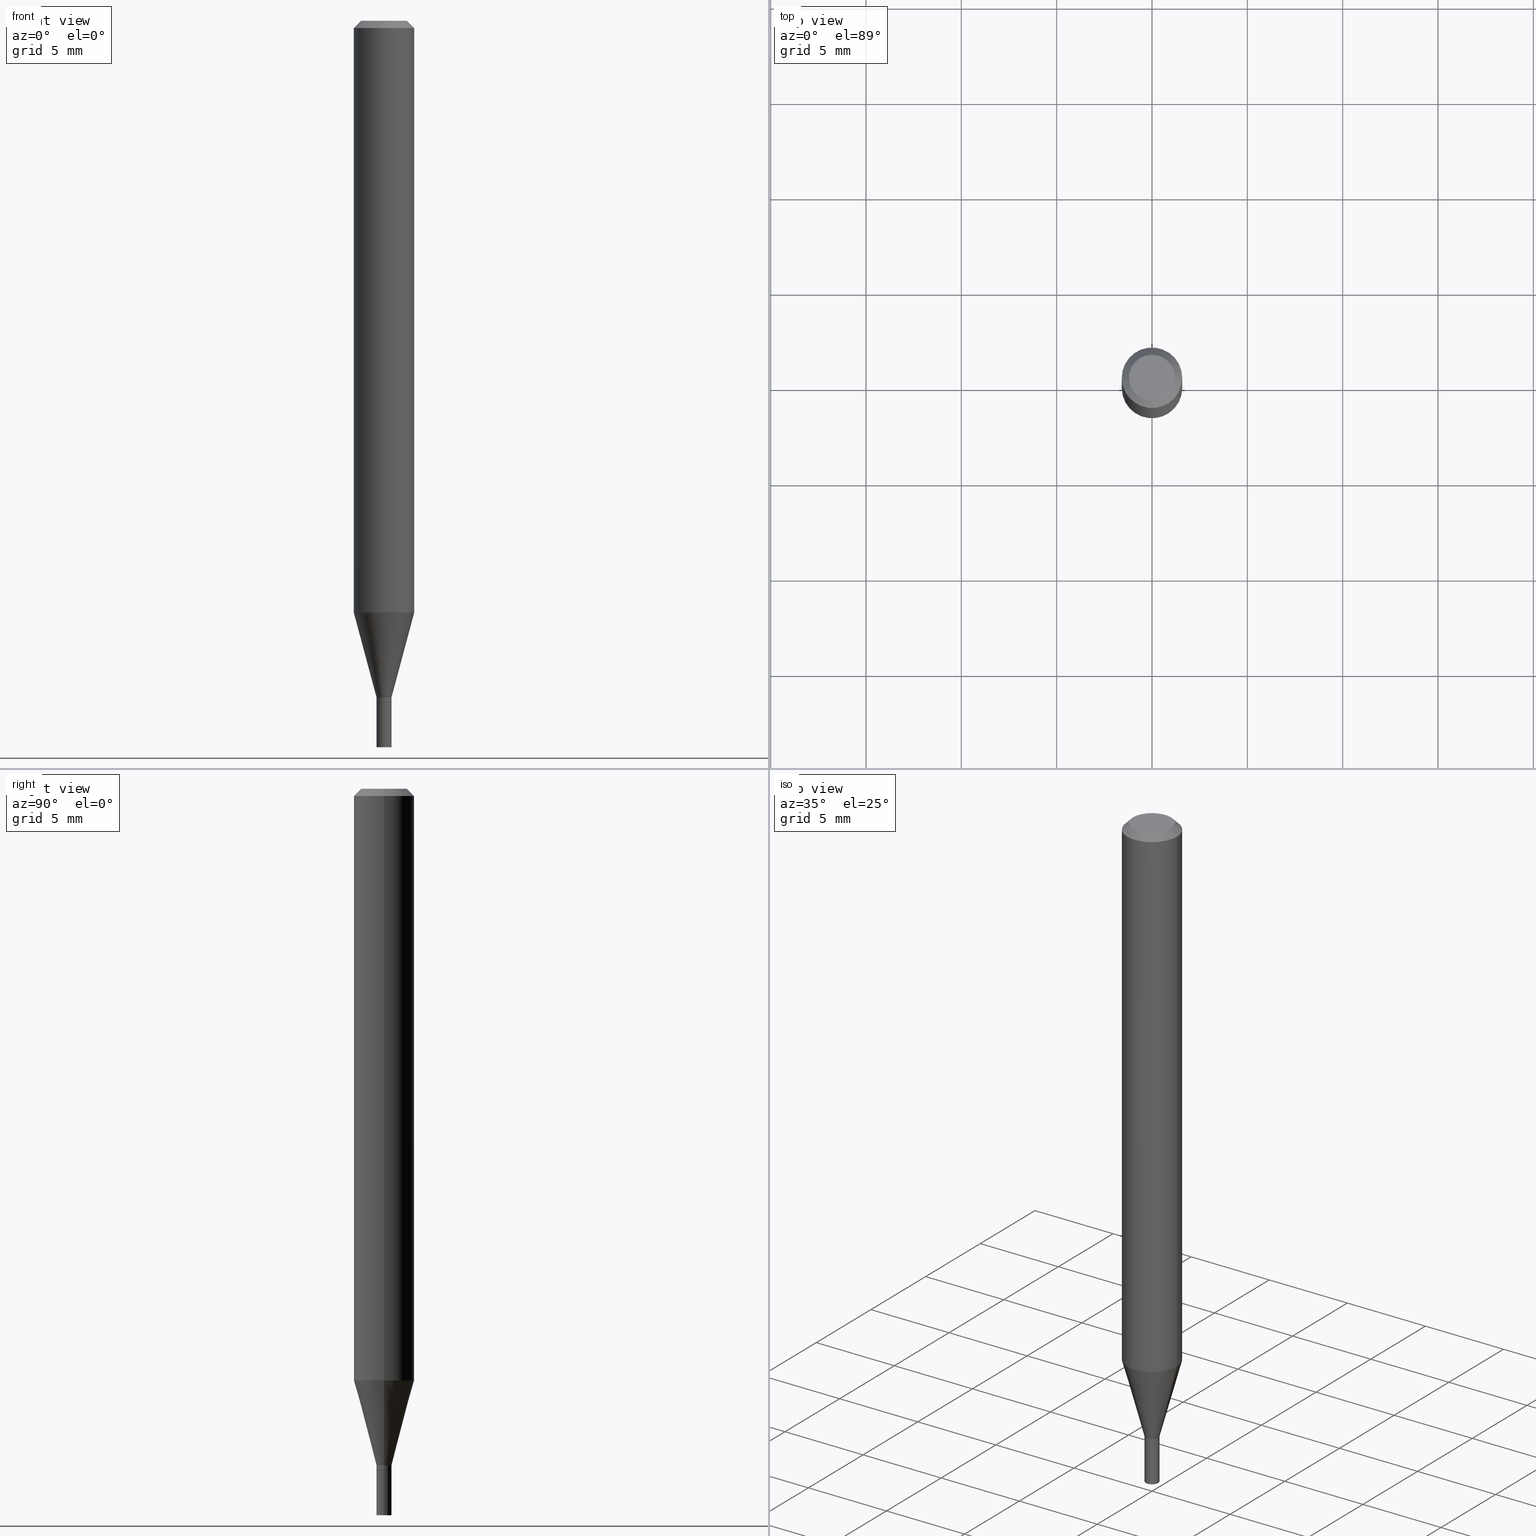
[diagram: canonical four-view strip — front | top / right | iso, engineering-drawing reading convention]
A machine part, canonical four-view strip (front | top / right | iso — engineering-drawing reading convention). The complete STEP part file that produces these views, byte-faithful:
ISO-10303-21;
HEADER;
FILE_DESCRIPTION (( 'STEP AP203' ),
    '1' );
FILE_NAME ('00837.STEP',
    '2024-03-19T22:39:17',
    ( '' ),
    ( '' ),
    'SwSTEP 2.0',
    'SolidWorks 2023',
    '' );
FILE_SCHEMA (( 'CONFIG_CONTROL_DESIGN' ));
ENDSEC;

DATA;
#1 = DIRECTION ( 'NONE',  ( 1.000000000000000000, -6.982962677686267499E-15, 4.852736867747366768E-29 ) ) ;
#2 = APPROVAL_DATE_TIME ( #331, #119 ) ;
#3 = EDGE_CURVE ( 'NONE', #184, #27, #83, .T. ) ;
#4 = FACE_OUTER_BOUND ( 'NONE', #327, .T. ) ;
#5 = VECTOR ( 'NONE', #39, 39.37007874015748143 ) ;
#6 = LOCAL_TIME ( 18, 39, 17.00000000000000000, #149 ) ;
#7 = APPROVAL_ROLE ( '' ) ;
#8 = DIMENSIONAL_EXPONENTS ( 1.000000000000000000, 0.000000000000000000, 0.000000000000000000, 0.000000000000000000, 0.000000000000000000, 0.000000000000000000, 0.000000000000000000 ) ;
#9 = LINE ( 'NONE', #378, #49 ) ;
#10 = PRODUCT_RELATED_PRODUCT_CATEGORY ( 'detail', '', ( #68 ) ) ;
#11 = VERTEX_POINT ( 'NONE', #336 ) ;
#12 = LINE ( 'NONE', #159, #289 ) ;
#13 = PERSON_AND_ORGANIZATION_ROLE ( 'design_supplier' ) ;
#14 = LINE ( 'NONE', #414, #203 ) ;
#15 = ORIENTED_EDGE ( 'NONE', *, *, #394, .T. ) ;
#16 = CARTESIAN_POINT ( 'NONE',  ( 0.04749999999999999362, -4.035134999187586019E-16, -4.684051019975741414E-16 ) ) ;
#17 = EDGE_CURVE ( 'NONE', #100, #400, #9, .T. ) ;
#18 = DIRECTION ( 'NONE',  ( -2.445468806185136597E-29, 3.491481338843145583E-15, 1.000000000000000000 ) ) ;
#19 = AXIS2_PLACEMENT_3D ( 'NONE', #426, #416, #96 ) ;
#20 = ORGANIZATION ( 'UNSPECIFIED', 'UNSPECIFIED', '' ) ;
#21 = APPROVAL_ROLE ( '' ) ;
#22 = EDGE_LOOP ( 'NONE', ( #314, #104, #66, #317 ) ) ;
#23 = CARTESIAN_POINT ( 'NONE',  ( 3.416319922240636557E-29, -4.877599430363875031E-15, -1.397000000000000242 ) ) ;
#24 = ORIENTED_EDGE ( 'NONE', *, *, #352, .F. ) ;
#25 = APPROVAL_DATE_TIME ( #312, #196 ) ;
#26 = FACE_OUTER_BOUND ( 'NONE', #461, .T. ) ;
#27 = VERTEX_POINT ( 'NONE', #125 ) ;
#28 = EDGE_CURVE ( 'NONE', #463, #419, #406, .T. ) ;
#29 = ORIENTED_EDGE ( 'NONE', *, *, #28, .F. ) ;
#30 = DIRECTION ( 'NONE',  ( -2.445468806185136597E-29, 3.491481338843145583E-15, 1.000000000000000000 ) ) ;
#31 = ORIENTED_EDGE ( 'NONE', *, *, #335, .T. ) ;
#32 = LINE ( 'NONE', #437, #421 ) ;
#33 = CARTESIAN_POINT ( 'NONE',  ( -0.06250000000000000000, 4.440892098500626162E-16, -3.074334431409316114E-30 ) ) ;
#34 = CARTESIAN_POINT ( 'NONE',  ( 2.987369072089272424E-29, -4.265171300102537329E-15, -1.221593612044262978 ) ) ;
#35 = EDGE_CURVE ( 'NONE', #463, #184, #194, .T. ) ;
#36 = CYLINDRICAL_SURFACE ( 'NONE', #185, 0.01549999999999999989 ) ;
#37 = DIRECTION ( 'NONE',  ( -2.445468806185136877E-29, 3.491481338843145188E-15, 1.000000000000000000 ) ) ;
#38 =( NAMED_UNIT ( * ) PLANE_ANGLE_UNIT ( ) SI_UNIT ( $, .RADIAN. ) );
#39 = DIRECTION ( 'NONE',  ( -2.445468806185136877E-29, 3.491481338843145188E-15, 1.000000000000000000 ) ) ;
#40 = AXIS2_PLACEMENT_3D ( 'NONE', #381, #58, #199 ) ;
#41 = DIRECTION ( 'NONE',  ( -2.445468806185136597E-29, 3.491481338843145583E-15, 1.000000000000000000 ) ) ;
#42 = APPLICATION_PROTOCOL_DEFINITION ( 'international standard', 'config_control_design', 1994, #221 ) ;
#43 = EDGE_CURVE ( 'NONE', #52, #249, #263, .T. ) ;
#44 = DIRECTION ( 'NONE',  ( 1.000000000000000000, -6.982962677686273810E-15, 0.000000000000000000 ) ) ;
#45 = DIRECTION ( 'NONE',  ( -0.7071067811865642261, 7.493145998870414114E-15, 0.7071067811865309194 ) ) ;
#46 = PERSON_AND_ORGANIZATION ( #142, #20 ) ;
#47 = PERSON_AND_ORGANIZATION ( #142, #20 ) ;
#48 = AXIS2_PLACEMENT_3D ( 'NONE', #111, #326, #325 ) ;
#49 = VECTOR ( 'NONE', #270, 39.37007874015748143 ) ;
#50 = DIRECTION ( 'NONE',  ( 1.000000000000000000, -6.982962677686270655E-15, 0.000000000000000000 ) ) ;
#51 = EDGE_CURVE ( 'NONE', #252, #282, #12, .T. ) ;
#52 = VERTEX_POINT ( 'NONE', #16 ) ;
#53 = DIRECTION ( 'NONE',  ( -2.445468806185136597E-29, 3.491481338843145583E-15, 1.000000000000000000 ) ) ;
#54 = SHAPE_DEFINITION_REPRESENTATION ( #253, #357 ) ;
#55 = CARTESIAN_POINT ( 'NONE',  ( 0.01549999999999992183, -4.985835351868011408E-15, -1.397000000000000242 ) ) ;
#56 = CIRCLE ( 'NONE', #269, 0.04749999999999999362 ) ;
#57 = EDGE_CURVE ( 'NONE', #419, #27, #14, .T. ) ;
#58 = DIRECTION ( 'NONE',  ( -2.445468806185136597E-29, 3.491481338843145583E-15, 1.000000000000000000 ) ) ;
#59 = CARTESIAN_POINT ( 'NONE',  ( 0.01549999999999992183, -5.019004424587020764E-15, -1.406500000000000083 ) ) ;
#60 = COORDINATED_UNIVERSAL_TIME_OFFSET ( 5, 0, .BEHIND. ) ;
#61 = DIRECTION ( 'NONE',  ( -2.445468806185136597E-29, 3.491481338843145583E-15, 1.000000000000000000 ) ) ;
#62 = DIRECTION ( 'NONE',  ( 1.000000000000000000, -6.982962677686238312E-15, 0.000000000000000000 ) ) ;
#63 = VECTOR ( 'NONE', #283, 39.37007874015748143 ) ;
#64 = AXIS2_PLACEMENT_3D ( 'NONE', #369, #330, #151 ) ;
#65 = ORIENTED_EDGE ( 'NONE', *, *, #17, .T. ) ;
#66 = ORIENTED_EDGE ( 'NONE', *, *, #428, .F. ) ;
#67 = DIRECTION ( 'NONE',  ( 2.445468806185136597E-29, -3.491481338843145583E-15, -1.000000000000000000 ) ) ;
#68 = PRODUCT ( '00837', '00837', '', ( #191 ) ) ;
#69 = ADVANCED_FACE ( 'NONE', ( #232 ), #226, .T. ) ;
#70 = CARTESIAN_POINT ( 'NONE',  ( 3.668203209277705088E-31, -5.237222008264718399E-17, -0.01499999999999999944 ) ) ;
#71 = EDGE_LOOP ( 'NONE', ( #276, #425, #212, #395 ) ) ;
#72 = CARTESIAN_POINT ( 'NONE',  ( 3.440774610302487541E-29, -4.912514243752305891E-15, -1.407000000000000028 ) ) ;
#73 = CIRCLE ( 'NONE', #318, 0.04749999999999999362 ) ;
#74 = VERTEX_POINT ( 'NONE', #163 ) ;
#75 = CC_DESIGN_PERSON_AND_ORGANIZATION_ASSIGNMENT ( #46, #112, ( #68 ) ) ;
#76 = FACE_OUTER_BOUND ( 'NONE', #181, .T. ) ;
#77 = DIRECTION ( 'NONE',  ( -2.445468806185136597E-29, 3.491481338843145583E-15, 1.000000000000000000 ) ) ;
#78 = LINE ( 'NONE', #33, #5 ) ;
#79 = FACE_OUTER_BOUND ( 'NONE', #284, .T. ) ;
#80 = CARTESIAN_POINT ( 'NONE',  ( 0.000000000000000000, 0.000000000000000000, 0.000000000000000000 ) ) ;
#81 = AXIS2_PLACEMENT_3D ( 'NONE', #139, #98, #241 ) ;
#82 = AXIS2_PLACEMENT_3D ( 'NONE', #294, #189, #333 ) ;
#83 = CIRCLE ( 'NONE', #340, 0.06250000000000000000 ) ;
#84 = DIRECTION ( 'NONE',  ( -2.445468806185136597E-29, 3.491481338843145583E-15, 1.000000000000000000 ) ) ;
#85 = APPLICATION_PROTOCOL_DEFINITION ( 'international standard', 'config_control_design', 1994, #138 ) ;
#86 = CYLINDRICAL_SURFACE ( 'NONE', #299, 0.06250000000000000000 ) ;
#87 = EDGE_CURVE ( 'NONE', #11, #398, #172, .T. ) ;
#88 = AXIS2_PLACEMENT_3D ( 'NONE', #288, #255, #402 ) ;
#89 = AXIS2_PLACEMENT_3D ( 'NONE', #420, #18, #346 ) ;
#90 = PRODUCT_DEFINITION_FORMATION_WITH_SPECIFIED_SOURCE ( 'ANY', '', #68, .NOT_KNOWN. ) ;
#91 = DATE_AND_TIME ( #231, #309 ) ;
#92 = EDGE_CURVE ( 'NONE', #398, #400, #334, .T. ) ;
#93 = DIRECTION ( 'NONE',  ( -0.2588190451025212391, 5.211531920934549464E-15, 0.9659258262890679791 ) ) ;
#94 = CARTESIAN_POINT ( 'NONE',  ( 3.668203209277705088E-31, -5.237222008264718399E-17, -0.01499999999999999944 ) ) ;
#95 = VERTEX_POINT ( 'NONE', #451 ) ;
#96 = DIRECTION ( 'NONE',  ( 1.000000000000000000, -6.982962677686273810E-15, 0.000000000000000000 ) ) ;
#97 = ORIENTED_EDGE ( 'NONE', *, *, #428, .T. ) ;
#98 = DIRECTION ( 'NONE',  ( -2.438088387897960049E-29, 3.491481338843145188E-15, 1.000000000000000000 ) ) ;
#99 = CC_DESIGN_DATE_AND_TIME_ASSIGNMENT ( #200, #341, ( #242 ) ) ;
#100 = VERTEX_POINT ( 'NONE', #204 ) ;
#101 = CYLINDRICAL_SURFACE ( 'NONE', #328, 0.01549999999999992183 ) ;
#102 = ORIENTED_EDGE ( 'NONE', *, *, #248, .T. ) ;
#103 = DIRECTION ( 'NONE',  ( -1.000000000000000000, 6.982962677686265922E-15, -4.876176775795935793E-29 ) ) ;
#104 = ORIENTED_EDGE ( 'NONE', *, *, #342, .T. ) ;
#105 = ADVANCED_FACE ( 'NONE', ( #165 ), #130, .F. ) ;
#106 = ORIENTED_EDGE ( 'NONE', *, *, #361, .T. ) ;
#107 = DIRECTION ( 'NONE',  ( -2.445468806185136597E-29, 3.491481338843145583E-15, 1.000000000000000000 ) ) ;
#108 = CIRCLE ( 'NONE', #374, 0.01499999999999999944 ) ;
#109 = ORIENTED_EDGE ( 'NONE', *, *, #92, .F. ) ;
#110 = DIRECTION ( 'NONE',  ( -2.445468806185136597E-29, 3.491481338843145583E-15, 1.000000000000000000 ) ) ;
#111 = CARTESIAN_POINT ( 'NONE',  ( 0.000000000000000000, 0.000000000000000000, 0.000000000000000000 ) ) ;
#112 = PERSON_AND_ORGANIZATION_ROLE ( 'design_owner' ) ;
#113 = UNCERTAINTY_MEASURE_WITH_UNIT (LENGTH_MEASURE( 1.000000000000000082E-05 ), #264, 'distance_accuracy_value', 'NONE');
#114 = EDGE_CURVE ( 'NONE', #140, #419, #272, .T. ) ;
#115 = CARTESIAN_POINT ( 'NONE',  ( 1.145470065593040868E-44, -1.635427672643458845E-30, -4.684051019975766066E-16 ) ) ;
#116 = CYLINDRICAL_SURFACE ( 'NONE', #48, 0.06250000000000000000 ) ;
#117 = PERSON_AND_ORGANIZATION ( #142, #20 ) ;
#118 = CARTESIAN_POINT ( 'NONE',  ( 0.000000000000000000, 0.000000000000000000, 0.000000000000000000 ) ) ;
#119 = APPROVAL ( #261, 'UNSPECIFIED' ) ;
#120 = CIRCLE ( 'NONE', #218, 0.01549999999999992183 ) ;
#121 = APPROVAL_PERSON_ORGANIZATION ( #308, #450, #236 ) ;
#122 = LENGTH_MEASURE_WITH_UNIT ( LENGTH_MEASURE( 0.02539999999999999897 ), #228 );
#123 = ADVANCED_FACE ( 'NONE', ( #418 ), #302, .T. ) ;
#124 = COORDINATED_UNIVERSAL_TIME_OFFSET ( 5, 0, .BEHIND. ) ;
#125 = CARTESIAN_POINT ( 'NONE',  ( -0.06250000000000000000, -3.821082090252475502E-15, -1.221593612044262978 ) ) ;
#126 = AXIS2_PLACEMENT_3D ( 'NONE', #94, #135, #278 ) ;
#127 = CC_DESIGN_APPROVAL ( #196, ( #90 ) ) ;
#128 = EDGE_CURVE ( 'NONE', #419, #463, #367, .T. ) ;
#129 = ORIENTED_EDGE ( 'NONE', *, *, #394, .F. ) ;
#130 = PLANE ( 'NONE',  #176 ) ;
#131 = ADVANCED_FACE ( 'NONE', ( #244 ), #348, .T. ) ;
#132 = ORIENTED_EDGE ( 'NONE', *, *, #87, .T. ) ;
#133 = DIRECTION ( 'NONE',  ( 1.000000000000000000, -6.982962677686266711E-15, 0.000000000000000000 ) ) ;
#134 = EDGE_LOOP ( 'NONE', ( #170, #158, #273, #459 ) ) ;
#135 = DIRECTION ( 'NONE',  ( 2.445468806185136597E-29, -3.491481338843145583E-15, -1.000000000000000000 ) ) ;
#136 = CONICAL_SURFACE ( 'NONE', #257, 0.01499999999999999944, 0.7853981633974718157 ) ;
#137 = EDGE_LOOP ( 'NONE', ( #429, #456 ) ) ;
#138 = APPLICATION_CONTEXT ( 'configuration controlled 3d designs of mechanical parts and assemblies' ) ;
#139 = CARTESIAN_POINT ( 'NONE',  ( 3.440774610302487541E-29, -4.912514243752305891E-15, -1.407000000000000028 ) ) ;
#140 = VERTEX_POINT ( 'NONE', #351 ) ;
#141 = CARTESIAN_POINT ( 'NONE',  ( -0.01549999999999999989, 1.101341240428155280E-16, -7.624349389895103058E-31 ) ) ;
#142 = PERSON ( 'UNSPECIFIED', 'UNSPECIFIED', 'UNSPECIFIED', ('UNSPECIFIED'), ('UNSPECIFIED'), ('UNSPECIFIED') ) ;
#143 = DIRECTION ( 'NONE',  ( 1.000000000000000000, -6.982962677686266711E-15, 4.876176775795935232E-29 ) ) ;
#144 = ORIENTED_EDGE ( 'NONE', *, *, #332, .T. ) ;
#145 = VECTOR ( 'NONE', #454, 39.37007874015748143 ) ;
#146 = DIRECTION ( 'NONE',  ( 1.000000000000000000, -6.982962677686267499E-15, 4.876176775795935793E-29 ) ) ;
#147 = AXIS2_PLACEMENT_3D ( 'NONE', #438, #411, #266 ) ;
#148 = FACE_OUTER_BOUND ( 'NONE', #193, .T. ) ;
#149 = COORDINATED_UNIVERSAL_TIME_OFFSET ( 5, 0, .BEHIND. ) ;
#150 = EDGE_CURVE ( 'NONE', #400, #398, #296, .T. ) ;
#151 = DIRECTION ( 'NONE',  ( -1.000000000000000000, 6.982962677686265922E-15, -4.876176775795935793E-29 ) ) ;
#152 = DIRECTION ( 'NONE',  ( 1.000000000000000000, 0.000000000000000000, 0.000000000000000000 ) ) ;
#153 = CYLINDRICAL_SURFACE ( 'NONE', #210, 0.01549999999999999989 ) ;
#154 = CIRCLE ( 'NONE', #82, 0.01549999999999992183 ) ;
#155 = ADVANCED_FACE ( 'NONE', ( #322 ), #410, .T. ) ;
#156 = CARTESIAN_POINT ( 'NONE',  ( 3.416319922240636557E-29, -4.877599430363875031E-15, -1.397000000000000242 ) ) ;
#157 = AXIS2_PLACEMENT_3D ( 'NONE', #385, #178, #62 ) ;
#158 = ORIENTED_EDGE ( 'NONE', *, *, #57, .T. ) ;
#159 = CARTESIAN_POINT ( 'NONE',  ( 0.01499999999999999944, -5.017258683917599261E-15, -1.407000000000000028 ) ) ;
#160 = FACE_OUTER_BOUND ( 'NONE', #22, .T. ) ;
#161 = CALENDAR_DATE ( 2024, 19, 3 ) ;
#162 = PERSON_AND_ORGANIZATION_ROLE ( 'creator' ) ;
#163 = CARTESIAN_POINT ( 'NONE',  ( -0.01499999999999999944, -4.803283606214179568E-15, -1.407000000000000028 ) ) ;
#164 = ORIENTED_EDGE ( 'NONE', *, *, #35, .T. ) ;
#165 = FACE_OUTER_BOUND ( 'NONE', #243, .T. ) ;
#166 = AXIS2_PLACEMENT_3D ( 'NONE', #458, #237, #392 ) ;
#167 = AXIS2_PLACEMENT_3D ( 'NONE', #80, #220, #152 ) ;
#168 = CC_DESIGN_PERSON_AND_ORGANIZATION_ASSIGNMENT ( #171, #13, ( #90 ) ) ;
#169 = DIRECTION ( 'NONE',  ( 2.438088387897960049E-29, -3.491481338843145188E-15, -1.000000000000000000 ) ) ;
#170 = ORIENTED_EDGE ( 'NONE', *, *, #28, .T. ) ;
#171 = PERSON_AND_ORGANIZATION ( #142, #20 ) ;
#172 = LINE ( 'NONE', #141, #307 ) ;
#173 = ORIENTED_EDGE ( 'NONE', *, *, #342, .F. ) ;
#174 = DIRECTION ( 'NONE',  ( 1.000000000000000000, -6.982962677686267499E-15, 4.876176775795935793E-29 ) ) ;
#175 = EDGE_CURVE ( 'NONE', #100, #11, #430, .T. ) ;
#176 = AXIS2_PLACEMENT_3D ( 'NONE', #311, #169, #103 ) ;
#177 =( GEOMETRIC_REPRESENTATION_CONTEXT ( 3 ) GLOBAL_UNCERTAINTY_ASSIGNED_CONTEXT ( ( #113 ) ) GLOBAL_UNIT_ASSIGNED_CONTEXT ( ( #264, #38, #323 ) ) REPRESENTATION_CONTEXT ( 'NONE', 'WORKASPACE' ) );
#178 = DIRECTION ( 'NONE',  ( -2.445468806185136597E-29, 3.491481338843145583E-15, 1.000000000000000000 ) ) ;
#179 = CARTESIAN_POINT ( 'NONE',  ( 3.668203209277704895E-29, -5.237222008264718177E-15, -1.500000000000000222 ) ) ;
#180 = CARTESIAN_POINT ( 'NONE',  ( -0.01499999999999999944, -4.805932833388290769E-15, -1.407000000000000028 ) ) ;
#181 = EDGE_LOOP ( 'NONE', ( #173, #391, #144, #205 ) ) ;
#182 = EDGE_CURVE ( 'NONE', #95, #249, #339, .T. ) ;
#183 = LINE ( 'NONE', #251, #404 ) ;
#184 = VERTEX_POINT ( 'NONE', #275 ) ;
#185 = AXIS2_PLACEMENT_3D ( 'NONE', #222, #211, #143 ) ;
#186 = LINE ( 'NONE', #180, #195 ) ;
#187 = CARTESIAN_POINT ( 'NONE',  ( -0.04749999999999999362, 3.578768372314202617E-16, -4.684051019975790718E-16 ) ) ;
#188 = CALENDAR_DATE ( 2024, 19, 3 ) ;
#189 = DIRECTION ( 'NONE',  ( -2.445468806185136597E-29, 3.491481338843145583E-15, 1.000000000000000000 ) ) ;
#190 = COORDINATED_UNIVERSAL_TIME_OFFSET ( 5, 0, .BEHIND. ) ;
#191 = MECHANICAL_CONTEXT ( 'NONE', #138, 'mechanical' ) ;
#192 = CIRCLE ( 'NONE', #347, 0.06250000000000000000 ) ;
#193 = EDGE_LOOP ( 'NONE', ( #310, #423, #29, #377 ) ) ;
#194 = LINE ( 'NONE', #55, #457 ) ;
#195 = VECTOR ( 'NONE', #45, 39.37007874015748143 ) ;
#196 = APPROVAL ( #434, 'UNSPECIFIED' ) ;
#197 = ORIENTED_EDGE ( 'NONE', *, *, #417, .F. ) ;
#198 = AXIS2_PLACEMENT_3D ( 'NONE', #156, #53, #301 ) ;
#199 = DIRECTION ( 'NONE',  ( 1.000000000000000000, -6.982962677686268288E-15, 0.000000000000000000 ) ) ;
#200 = DATE_AND_TIME ( #161, #227 ) ;
#201 = DIRECTION ( 'NONE',  ( -2.445468806185136877E-29, 3.491481338843145188E-15, 1.000000000000000000 ) ) ;
#202 = ADVANCED_FACE ( 'NONE', ( #235 ), #356, .F. ) ;
#203 = VECTOR ( 'NONE', #93, 39.37007874015748854 ) ;
#204 = CARTESIAN_POINT ( 'NONE',  ( 0.01549999999999999989, -5.345457929768855342E-15, -1.500000000000000222 ) ) ;
#205 = ORIENTED_EDGE ( 'NONE', *, *, #182, .F. ) ;
#206 = DIRECTION ( 'NONE',  ( -1.000000000000000000, 6.982962677686266711E-15, 0.000000000000000000 ) ) ;
#207 = DIRECTION ( 'NONE',  ( 1.000000000000000000, -6.982962677686273810E-15, 0.000000000000000000 ) ) ;
#208 = EDGE_LOOP ( 'NONE', ( #24, #363, #97, #384 ) ) ;
#209 = DIRECTION ( 'NONE',  ( -2.445468806185136597E-29, 3.491481338843145583E-15, 1.000000000000000000 ) ) ;
#210 = AXIS2_PLACEMENT_3D ( 'NONE', #436, #285, #219 ) ;
#211 = DIRECTION ( 'NONE',  ( -2.445468806185136597E-29, 3.491481338843145583E-15, 1.000000000000000000 ) ) ;
#212 = ORIENTED_EDGE ( 'NONE', *, *, #229, .T. ) ;
#213 = ADVANCED_FACE ( 'NONE', ( #246 ), #379, .T. ) ;
#214 = DIRECTION ( 'NONE',  ( 1.000000000000000000, -6.982962677686267499E-15, 4.852736867747366768E-29 ) ) ;
#215 = ORIENTED_EDGE ( 'NONE', *, *, #57, .F. ) ;
#216 = ADVANCED_FACE ( 'NONE', ( #26 ), #101, .T. ) ;
#217 = DIRECTION ( 'NONE',  ( 1.000000000000000000, -6.982962677686268288E-15, 0.000000000000000000 ) ) ;
#218 = AXIS2_PLACEMENT_3D ( 'NONE', #435, #84, #44 ) ;
#219 = DIRECTION ( 'NONE',  ( 1.000000000000000000, -6.982962677686266711E-15, 4.876176775795935232E-29 ) ) ;
#220 = DIRECTION ( 'NONE',  ( 0.000000000000000000, 0.000000000000000000, 1.000000000000000000 ) ) ;
#221 = APPLICATION_CONTEXT ( 'configuration controlled 3d designs of mechanical parts and assemblies' ) ;
#222 = CARTESIAN_POINT ( 'NONE',  ( 0.000000000000000000, 0.000000000000000000, 0.000000000000000000 ) ) ;
#223 = PERSON_AND_ORGANIZATION_ROLE ( 'creator' ) ;
#224 = DIRECTION ( 'NONE',  ( 1.000000000000000000, -6.982962677686266711E-15, 4.876176775795935793E-29 ) ) ;
#225 = CLOSED_SHELL ( 'NONE', ( #300, #386, #315, #409 ) ) ;
#226 = CONICAL_SURFACE ( 'NONE', #40, 0.01499999999999999944, 0.7853981633974718157 ) ;
#227 = LOCAL_TIME ( 18, 39, 17.00000000000000000, #380 ) ;
#228 =( LENGTH_UNIT ( ) NAMED_UNIT ( * ) SI_UNIT ( $, .METRE. ) );
#229 = EDGE_CURVE ( 'NONE', #344, #95, #382, .T. ) ;
#230 = ORIENTED_EDGE ( 'NONE', *, *, #280, .T. ) ;
#231 = CALENDAR_DATE ( 2024, 19, 3 ) ;
#232 = FACE_OUTER_BOUND ( 'NONE', #247, .T. ) ;
#233 = PERSON_AND_ORGANIZATION ( #142, #20 ) ;
#234 = ADVANCED_FACE ( 'NONE', ( #396 ), #136, .T. ) ;
#235 = FACE_OUTER_BOUND ( 'NONE', #353, .T. ) ;
#236 = APPROVAL_ROLE ( '' ) ;
#237 = DIRECTION ( 'NONE',  ( -2.445468806185136597E-29, 3.491481338843145583E-15, 1.000000000000000000 ) ) ;
#238 = ORIENTED_EDGE ( 'NONE', *, *, #17, .F. ) ;
#239 = AXIS2_PLACEMENT_3D ( 'NONE', #179, #371, #383 ) ;
#240 = ORIENTED_EDGE ( 'NONE', *, *, #293, .F. ) ;
#241 = DIRECTION ( 'NONE',  ( 1.000000000000000000, -6.982962677686265922E-15, 4.876176775795935793E-29 ) ) ;
#242 = SECURITY_CLASSIFICATION ( '', '', #274 ) ;
#243 = EDGE_LOOP ( 'NONE', ( #106, #286 ) ) ;
#244 = FACE_OUTER_BOUND ( 'NONE', #365, .T. ) ;
#245 = ORIENTED_EDGE ( 'NONE', *, *, #254, .T. ) ;
#246 = FACE_OUTER_BOUND ( 'NONE', #71, .T. ) ;
#247 = EDGE_LOOP ( 'NONE', ( #15, #31, #393, #376 ) ) ;
#248 = EDGE_CURVE ( 'NONE', #282, #463, #32, .T. ) ;
#249 = VERTEX_POINT ( 'NONE', #440 ) ;
#250 = AXIS2_PLACEMENT_3D ( 'NONE', #390, #67, #206 ) ;
#251 = CARTESIAN_POINT ( 'NONE',  ( 0.06250000000000000000, -4.364351673553916694E-16, 3.047610484872459871E-30 ) ) ;
#252 = VERTEX_POINT ( 'NONE', #405 ) ;
#253 = PRODUCT_DEFINITION_SHAPE ( 'NONE', 'NONE',  #267 ) ;
#254 = EDGE_CURVE ( 'NONE', #74, #252, #415, .T. ) ;
#255 = DIRECTION ( 'NONE',  ( -2.445468806185136597E-29, 3.491481338843145583E-15, 1.000000000000000000 ) ) ;
#256 = CARTESIAN_POINT ( 'NONE',  ( 3.440774610302487541E-29, -4.912514243752305891E-15, -1.407000000000000028 ) ) ;
#257 = AXIS2_PLACEMENT_3D ( 'NONE', #72, #209, #360 ) ;
#258 = DIRECTION ( 'NONE',  ( -2.438088387897960049E-29, 3.491481338843145188E-15, 1.000000000000000000 ) ) ;
#259 = EDGE_CURVE ( 'NONE', #282, #140, #120, .T. ) ;
#260 = DIRECTION ( 'NONE',  ( 1.000000000000000000, -6.982962677686270655E-15, 0.000000000000000000 ) ) ;
#261 = APPROVAL_STATUS ( 'not_yet_approved' ) ;
#262 = AXIS2_PLACEMENT_3D ( 'NONE', #23, #61, #207 ) ;
#263 = LINE ( 'NONE', #413, #320 ) ;
#264 =( CONVERSION_BASED_UNIT ( 'INCH', #122 ) LENGTH_UNIT ( ) NAMED_UNIT ( #8 ) );
#265 = PERSON_AND_ORGANIZATION_ROLE ( 'classification_officer' ) ;
#266 = DIRECTION ( 'NONE',  ( 1.000000000000000000, -6.982962677686266711E-15, 0.000000000000000000 ) ) ;
#267 = PRODUCT_DEFINITION ( 'UNKNOWN', '', #90, #375 ) ;
#268 = MANIFOLD_SOLID_BREP ( 'Body-Move/Copy2[1]', #225 ) ;
#269 = AXIS2_PLACEMENT_3D ( 'NONE', #115, #107, #1 ) ;
#270 = DIRECTION ( 'NONE',  ( -2.445468806185136877E-29, 3.491481338843145188E-15, 1.000000000000000000 ) ) ;
#271 = CALENDAR_DATE ( 2024, 19, 3 ) ;
#272 = LINE ( 'NONE', #460, #145 ) ;
#273 = ORIENTED_EDGE ( 'NONE', *, *, #3, .F. ) ;
#274 = SECURITY_CLASSIFICATION_LEVEL ( 'unclassified' ) ;
#275 = CARTESIAN_POINT ( 'NONE',  ( 0.06250000000000000000, -4.701606467457928999E-15, -1.221593612044262978 ) ) ;
#276 = ORIENTED_EDGE ( 'NONE', *, *, #43, .F. ) ;
#277 = AXIS2_PLACEMENT_3D ( 'NONE', #408, #110, #146 ) ;
#278 = DIRECTION ( 'NONE',  ( -1.000000000000000000, 6.982962677686266711E-15, 0.000000000000000000 ) ) ;
#279 = CLOSED_SHELL ( 'NONE', ( #324, #69, #155, #465, #123, #131, #373, #213, #105, #202, #234, #216 ) ) ;
#280 = EDGE_CURVE ( 'NONE', #11, #100, #387, .T. ) ;
#281 = ORIENTED_EDGE ( 'NONE', *, *, #175, .F. ) ;
#282 = VERTEX_POINT ( 'NONE', #59 ) ;
#283 = DIRECTION ( 'NONE',  ( -0.7071067811865585639, 2.468850131082372629E-15, -0.7071067811865364705 ) ) ;
#284 = EDGE_LOOP ( 'NONE', ( #444, #230, #65, #109 ) ) ;
#285 = DIRECTION ( 'NONE',  ( -2.445468806185136597E-29, 3.491481338843145583E-15, 1.000000000000000000 ) ) ;
#286 = ORIENTED_EDGE ( 'NONE', *, *, #352, .T. ) ;
#287 = CC_DESIGN_PERSON_AND_ORGANIZATION_ASSIGNMENT ( #233, #162, ( #90 ) ) ;
#288 = CARTESIAN_POINT ( 'NONE',  ( 3.440774610302487541E-29, -4.912514243752305891E-15, -1.407000000000000028 ) ) ;
#289 = VECTOR ( 'NONE', #304, 39.37007874015748143 ) ;
#290 = APPROVAL_PERSON_ORGANIZATION ( #47, #119, #7 ) ;
#291 = FACE_OUTER_BOUND ( 'NONE', #453, .T. ) ;
#292 = DATE_TIME_ROLE ( 'creation_date' ) ;
#293 = EDGE_CURVE ( 'NONE', #27, #184, #192, .T. ) ;
#294 = CARTESIAN_POINT ( 'NONE',  ( 3.439551875899394740E-29, -4.910768503082885176E-15, -1.406500000000000083 ) ) ;
#295 = PERSON_AND_ORGANIZATION ( #142, #20 ) ;
#296 = CIRCLE ( 'NONE', #157, 0.01549999999999999989 ) ;
#297 = CARTESIAN_POINT ( 'NONE',  ( -0.01549999999999992183, -4.294273698286767256E-15, -1.397000000000000242 ) ) ;
#298 = CALENDAR_DATE ( 2024, 19, 3 ) ;
#299 = AXIS2_PLACEMENT_3D ( 'NONE', #118, #443, #224 ) ;
#300 = ADVANCED_FACE ( 'NONE', ( #291 ), #36, .T. ) ;
#301 = DIRECTION ( 'NONE',  ( 1.000000000000000000, -6.982962677686273810E-15, 0.000000000000000000 ) ) ;
#302 = CONICAL_SURFACE ( 'NONE', #19, 0.01549999999999992183, 0.2617993877991499629 ) ;
#303 = ORIENTED_EDGE ( 'NONE', *, *, #114, .F. ) ;
#304 = DIRECTION ( 'NONE',  ( 0.7071067811865642261, -2.468850131082431399E-15, 0.7071067811865309194 ) ) ;
#305 = CC_DESIGN_PERSON_AND_ORGANIZATION_ASSIGNMENT ( #295, #223, ( #267 ) ) ;
#306 = CARTESIAN_POINT ( 'NONE',  ( 0.01549999999999992183, -4.985835351868011408E-15, -1.397000000000000242 ) ) ;
#307 = VECTOR ( 'NONE', #201, 39.37007874015748143 ) ;
#308 = PERSON_AND_ORGANIZATION ( #142, #20 ) ;
#309 = LOCAL_TIME ( 18, 39, 17.00000000000000000, #60 ) ;
#310 = ORIENTED_EDGE ( 'NONE', *, *, #259, .T. ) ;
#311 = CARTESIAN_POINT ( 'NONE',  ( 3.316907271900976096E-16, 0.04749999999999999362, -4.000479145938377490E-16 ) ) ;
#312 = DATE_AND_TIME ( #271, #422 ) ;
#313 = DIRECTION ( 'NONE',  ( -2.445468806185136597E-29, 3.491481338843145583E-15, 1.000000000000000000 ) ) ;
#314 = ORIENTED_EDGE ( 'NONE', *, *, #3, .T. ) ;
#315 = ADVANCED_FACE ( 'NONE', ( #79 ), #153, .T. ) ;
#316 = CARTESIAN_POINT ( 'NONE',  ( 0.000000000000000000, 0.000000000000000000, 0.000000000000000000 ) ) ;
#317 = ORIENTED_EDGE ( 'NONE', *, *, #332, .F. ) ;
#318 = AXIS2_PLACEMENT_3D ( 'NONE', #433, #399, #214 ) ;
#319 = CARTESIAN_POINT ( 'NONE',  ( -0.06250000000000000000, 3.840629472727444916E-16, -0.01499999999999999944 ) ) ;
#320 = VECTOR ( 'NONE', #338, 39.37007874015748143 ) ;
#321 = ORIENTED_EDGE ( 'NONE', *, *, #254, .F. ) ;
#322 = FACE_OUTER_BOUND ( 'NONE', #208, .T. ) ;
#323 =( NAMED_UNIT ( * ) SI_UNIT ( $, .STERADIAN. ) SOLID_ANGLE_UNIT ( ) );
#324 = ADVANCED_FACE ( 'NONE', ( #148 ), #401, .T. ) ;
#325 = DIRECTION ( 'NONE',  ( 1.000000000000000000, -6.982962677686266711E-15, 4.876176775795935793E-29 ) ) ;
#326 = DIRECTION ( 'NONE',  ( -2.445468806185136597E-29, 3.491481338843145583E-15, 1.000000000000000000 ) ) ;
#327 = EDGE_LOOP ( 'NONE', ( #281, #389 ) ) ;
#328 = AXIS2_PLACEMENT_3D ( 'NONE', #316, #30, #174 ) ;
#329 = FACE_OUTER_BOUND ( 'NONE', #137, .T. ) ;
#330 = DIRECTION ( 'NONE',  ( 2.438088387897960049E-29, -3.491481338843145188E-15, -1.000000000000000000 ) ) ;
#331 = DATE_AND_TIME ( #188, #449 ) ;
#332 = EDGE_CURVE ( 'NONE', #184, #249, #183, .T. ) ;
#333 = DIRECTION ( 'NONE',  ( 1.000000000000000000, -6.982962677686273810E-15, 0.000000000000000000 ) ) ;
#334 = CIRCLE ( 'NONE', #89, 0.01549999999999999989 ) ;
#335 = EDGE_CURVE ( 'NONE', #74, #140, #186, .T. ) ;
#336 = CARTESIAN_POINT ( 'NONE',  ( -0.01549999999999999989, -4.964734001965696802E-15, -1.500000000000000222 ) ) ;
#337 = EDGE_LOOP ( 'NONE', ( #343, #245, #397, #197 ) ) ;
#338 = DIRECTION ( 'NONE',  ( 0.7071067811865585639, -7.319954787623292333E-15, -0.7071067811865364705 ) ) ;
#339 = CIRCLE ( 'NONE', #455, 0.06250000000000000000 ) ;
#340 = AXIS2_PLACEMENT_3D ( 'NONE', #34, #77, #50 ) ;
#341 = DATE_TIME_ROLE ( 'classification_date' ) ;
#342 = EDGE_CURVE ( 'NONE', #27, #95, #78, .T. ) ;
#343 = ORIENTED_EDGE ( 'NONE', *, *, #335, .F. ) ;
#344 = VERTEX_POINT ( 'NONE', #187 ) ;
#345 = APPROVAL_STATUS ( 'not_yet_approved' ) ;
#346 = DIRECTION ( 'NONE',  ( 1.000000000000000000, -6.982962677686238312E-15, 0.000000000000000000 ) ) ;
#347 = AXIS2_PLACEMENT_3D ( 'NONE', #364, #41, #260 ) ;
#348 = CONICAL_SURFACE ( 'NONE', #166, 0.01549999999999992183, 0.2617993877991499629 ) ;
#349 = APPROVAL_PERSON_ORGANIZATION ( #117, #196, #21 ) ;
#350 = ORIENTED_EDGE ( 'NONE', *, *, #175, .T. ) ;
#351 = CARTESIAN_POINT ( 'NONE',  ( -0.01549999999999992183, -4.800634379040069155E-15, -1.406500000000000083 ) ) ;
#352 = EDGE_CURVE ( 'NONE', #52, #344, #56, .T. ) ;
#353 = EDGE_LOOP ( 'NONE', ( #129, #321 ) ) ;
#354 = CARTESIAN_POINT ( 'NONE',  ( 3.668203209277704895E-29, -5.237222008264718177E-15, -1.500000000000000222 ) ) ;
#355 = ORIENTED_EDGE ( 'NONE', *, *, #417, .T. ) ;
#356 = PLANE ( 'NONE',  #81 ) ;
#357 = ADVANCED_BREP_SHAPE_REPRESENTATION ( '00837', ( #268, #432, #167 ), #177 ) ;
#358 = ORIENTED_EDGE ( 'NONE', *, *, #150, .F. ) ;
#359 = ORIENTED_EDGE ( 'NONE', *, *, #128, .T. ) ;
#360 = DIRECTION ( 'NONE',  ( 1.000000000000000000, -6.982962677686268288E-15, 0.000000000000000000 ) ) ;
#361 = EDGE_CURVE ( 'NONE', #344, #52, #73, .T. ) ;
#362 = DIRECTION ( 'NONE',  ( -2.445468806185136877E-29, 3.491481338843145188E-15, 1.000000000000000000 ) ) ;
#363 = ORIENTED_EDGE ( 'NONE', *, *, #43, .T. ) ;
#364 = CARTESIAN_POINT ( 'NONE',  ( 2.987369072089272424E-29, -4.265171300102537329E-15, -1.221593612044262978 ) ) ;
#365 = EDGE_LOOP ( 'NONE', ( #215, #359, #164, #240 ) ) ;
#366 = CARTESIAN_POINT ( 'NONE',  ( -0.01549999999999999989, -4.964734001965696802E-15, -1.407000000000000028 ) ) ;
#367 = CIRCLE ( 'NONE', #262, 0.01549999999999992183 ) ;
#368 = CIRCLE ( 'NONE', #147, 0.06250000000000000000 ) ;
#369 = CARTESIAN_POINT ( 'NONE',  ( 1.082359215041715180E-16, 0.01549999999999508715, -1.407000000000000028 ) ) ;
#370 = CC_DESIGN_PERSON_AND_ORGANIZATION_ASSIGNMENT ( #445, #265, ( #242 ) ) ;
#371 = DIRECTION ( 'NONE',  ( -2.445468806185136597E-29, 3.491481338843145583E-15, 1.000000000000000000 ) ) ;
#372 = DIRECTION ( 'NONE',  ( 1.000000000000000000, -6.982962677686265922E-15, 4.876176775795935793E-29 ) ) ;
#373 = ADVANCED_FACE ( 'NONE', ( #76 ), #116, .T. ) ;
#374 = AXIS2_PLACEMENT_3D ( 'NONE', #256, #407, #217 ) ;
#375 = DESIGN_CONTEXT ( 'detailed design', #221, 'design' ) ;
#376 = ORIENTED_EDGE ( 'NONE', *, *, #51, .F. ) ;
#377 = ORIENTED_EDGE ( 'NONE', *, *, #248, .F. ) ;
#378 = CARTESIAN_POINT ( 'NONE',  ( 0.01549999999999999989, -1.082359215041371286E-16, 7.558074002483699918E-31 ) ) ;
#379 = CONICAL_SURFACE ( 'NONE', #250, 0.06250000000000000000, 0.7853981633974639331 ) ;
#380 = COORDINATED_UNIVERSAL_TIME_OFFSET ( 5, 0, .BEHIND. ) ;
#381 = CARTESIAN_POINT ( 'NONE',  ( 3.440774610302487541E-29, -4.912514243752305891E-15, -1.407000000000000028 ) ) ;
#382 = LINE ( 'NONE', #319, #63 ) ;
#383 = DIRECTION ( 'NONE',  ( 1.000000000000000000, -6.982962677686238312E-15, 0.000000000000000000 ) ) ;
#384 = ORIENTED_EDGE ( 'NONE', *, *, #229, .F. ) ;
#385 = CARTESIAN_POINT ( 'NONE',  ( 3.440774610302487541E-29, -4.912514243752305891E-15, -1.407000000000000028 ) ) ;
#386 = ADVANCED_FACE ( 'NONE', ( #4 ), #462, .F. ) ;
#387 = CIRCLE ( 'NONE', #239, 0.01549999999999999989 ) ;
#388 = CC_DESIGN_SECURITY_CLASSIFICATION ( #242, ( #90 ) ) ;
#389 = ORIENTED_EDGE ( 'NONE', *, *, #280, .F. ) ;
#390 = CARTESIAN_POINT ( 'NONE',  ( 3.668203209277705088E-31, -5.237222008264718399E-17, -0.01499999999999999944 ) ) ;
#391 = ORIENTED_EDGE ( 'NONE', *, *, #293, .T. ) ;
#392 = DIRECTION ( 'NONE',  ( 1.000000000000000000, -6.982962677686273810E-15, 0.000000000000000000 ) ) ;
#393 = ORIENTED_EDGE ( 'NONE', *, *, #259, .F. ) ;
#394 = EDGE_CURVE ( 'NONE', #252, #74, #108, .T. ) ;
#395 = ORIENTED_EDGE ( 'NONE', *, *, #182, .T. ) ;
#396 = FACE_OUTER_BOUND ( 'NONE', #337, .T. ) ;
#397 = ORIENTED_EDGE ( 'NONE', *, *, #51, .T. ) ;
#398 = VERTEX_POINT ( 'NONE', #366 ) ;
#399 = DIRECTION ( 'NONE',  ( -2.445468806185136597E-29, 3.491481338843145583E-15, 1.000000000000000000 ) ) ;
#400 = VERTEX_POINT ( 'NONE', #403 ) ;
#401 = CYLINDRICAL_SURFACE ( 'NONE', #277, 0.01549999999999992183 ) ;
#402 = DIRECTION ( 'NONE',  ( 1.000000000000000000, -6.982962677686268288E-15, 0.000000000000000000 ) ) ;
#403 = CARTESIAN_POINT ( 'NONE',  ( 0.01549999999999999989, -5.020750165256442268E-15, -1.407000000000000028 ) ) ;
#404 = VECTOR ( 'NONE', #362, 39.37007874015748143 ) ;
#405 = CARTESIAN_POINT ( 'NONE',  ( 0.01499999999999999944, -5.017258683917599261E-15, -1.407000000000000028 ) ) ;
#406 = CIRCLE ( 'NONE', #198, 0.01549999999999992183 ) ;
#407 = DIRECTION ( 'NONE',  ( -2.445468806185136597E-29, 3.491481338843145583E-15, 1.000000000000000000 ) ) ;
#408 = CARTESIAN_POINT ( 'NONE',  ( 0.000000000000000000, 0.000000000000000000, 0.000000000000000000 ) ) ;
#409 = ADVANCED_FACE ( 'NONE', ( #329 ), #466, .F. ) ;
#410 = CONICAL_SURFACE ( 'NONE', #126, 0.06250000000000000000, 0.7853981633974639331 ) ;
#411 = DIRECTION ( 'NONE',  ( -2.445468806185136597E-29, 3.491481338843145583E-15, 1.000000000000000000 ) ) ;
#412 = CC_DESIGN_APPROVAL ( #450, ( #242 ) ) ;
#413 = CARTESIAN_POINT ( 'NONE',  ( 0.06250000000000000000, -4.811533449433679005E-16, -0.01499999999999999944 ) ) ;
#414 = CARTESIAN_POINT ( 'NONE',  ( -0.01549999999999992183, -4.767465306321060588E-15, -1.397000000000000242 ) ) ;
#415 = CIRCLE ( 'NONE', #88, 0.01499999999999999944 ) ;
#416 = DIRECTION ( 'NONE',  ( -2.445468806185136597E-29, 3.491481338843145583E-15, 1.000000000000000000 ) ) ;
#417 = EDGE_CURVE ( 'NONE', #140, #282, #154, .T. ) ;
#418 = FACE_OUTER_BOUND ( 'NONE', #134, .T. ) ;
#419 = VERTEX_POINT ( 'NONE', #297 ) ;
#420 = CARTESIAN_POINT ( 'NONE',  ( 3.440774610302487541E-29, -4.912514243752305891E-15, -1.407000000000000028 ) ) ;
#421 = VECTOR ( 'NONE', #37, 39.37007874015748143 ) ;
#422 = LOCAL_TIME ( 18, 39, 17.00000000000000000, #124 ) ;
#423 = ORIENTED_EDGE ( 'NONE', *, *, #114, .T. ) ;
#424 = DIRECTION ( 'NONE',  ( 1.000000000000000000, -6.982962677686238312E-15, 0.000000000000000000 ) ) ;
#425 = ORIENTED_EDGE ( 'NONE', *, *, #361, .F. ) ;
#426 = CARTESIAN_POINT ( 'NONE',  ( 3.416319922240636557E-29, -4.877599430363875031E-15, -1.397000000000000242 ) ) ;
#427 = ORIENTED_EDGE ( 'NONE', *, *, #128, .F. ) ;
#428 = EDGE_CURVE ( 'NONE', #249, #95, #368, .T. ) ;
#429 = ORIENTED_EDGE ( 'NONE', *, *, #150, .T. ) ;
#430 = CIRCLE ( 'NONE', #464, 0.01549999999999999989 ) ;
#431 = CARTESIAN_POINT ( 'NONE',  ( 3.584916967085606921E-29, -5.356492647442320375E-15, -1.500000000000000222 ) ) ;
#432 = MANIFOLD_SOLID_BREP ( 'Body-Move/Copy2[2]', #279 ) ;
#433 = CARTESIAN_POINT ( 'NONE',  ( 1.145470065593040868E-44, -1.635427672643458845E-30, -4.684051019975766066E-16 ) ) ;
#434 = APPROVAL_STATUS ( 'not_yet_approved' ) ;
#435 = CARTESIAN_POINT ( 'NONE',  ( 3.439551875899394740E-29, -4.910768503082885176E-15, -1.406500000000000083 ) ) ;
#436 = CARTESIAN_POINT ( 'NONE',  ( 0.000000000000000000, 0.000000000000000000, 0.000000000000000000 ) ) ;
#437 = CARTESIAN_POINT ( 'NONE',  ( 0.01549999999999992183, -1.082359215041365986E-16, 7.558074002483662259E-31 ) ) ;
#438 = CARTESIAN_POINT ( 'NONE',  ( 3.668203209277705088E-31, -5.237222008264718399E-17, -0.01499999999999999944 ) ) ;
#439 = DATE_AND_TIME ( #298, #6 ) ;
#440 = CARTESIAN_POINT ( 'NONE',  ( 0.06250000000000000000, -4.888073874380388472E-16, -0.01499999999999999944 ) ) ;
#441 = DIRECTION ( 'NONE',  ( 0.2588190451025212391, 1.565188264969622362E-15, 0.9659258262890679791 ) ) ;
#442 = CC_DESIGN_APPROVAL ( #119, ( #267 ) ) ;
#443 = DIRECTION ( 'NONE',  ( -2.445468806185136597E-29, 3.491481338843145583E-15, 1.000000000000000000 ) ) ;
#444 = ORIENTED_EDGE ( 'NONE', *, *, #87, .F. ) ;
#445 = PERSON_AND_ORGANIZATION ( #142, #20 ) ;
#446 = CC_DESIGN_DATE_AND_TIME_ASSIGNMENT ( #439, #292, ( #267 ) ) ;
#447 = APPROVAL_DATE_TIME ( #91, #450 ) ;
#448 = AXIS2_PLACEMENT_3D ( 'NONE', #431, #258, #372 ) ;
#449 = LOCAL_TIME ( 18, 39, 17.00000000000000000, #190 ) ;
#450 = APPROVAL ( #345, 'UNSPECIFIED' ) ;
#451 = CARTESIAN_POINT ( 'NONE',  ( -0.06250000000000000000, -1.714682550242529785E-15, -0.01499999999999999944 ) ) ;
#452 = DIRECTION ( 'NONE',  ( -2.445468806185136597E-29, 3.491481338843145583E-15, 1.000000000000000000 ) ) ;
#453 = EDGE_LOOP ( 'NONE', ( #350, #132, #358, #238 ) ) ;
#454 = DIRECTION ( 'NONE',  ( -2.445468806185136877E-29, 3.491481338843145188E-15, 1.000000000000000000 ) ) ;
#455 = AXIS2_PLACEMENT_3D ( 'NONE', #70, #452, #133 ) ;
#456 = ORIENTED_EDGE ( 'NONE', *, *, #92, .T. ) ;
#457 = VECTOR ( 'NONE', #441, 39.37007874015748854 ) ;
#458 = CARTESIAN_POINT ( 'NONE',  ( 3.416319922240636557E-29, -4.877599430363875031E-15, -1.397000000000000242 ) ) ;
#459 = ORIENTED_EDGE ( 'NONE', *, *, #35, .F. ) ;
#460 = CARTESIAN_POINT ( 'NONE',  ( -0.01549999999999992183, 1.101341240428149734E-16, -7.624349389895065398E-31 ) ) ;
#461 = EDGE_LOOP ( 'NONE', ( #303, #355, #102, #427 ) ) ;
#462 = PLANE ( 'NONE',  #448 ) ;
#463 = VERTEX_POINT ( 'NONE', #306 ) ;
#464 = AXIS2_PLACEMENT_3D ( 'NONE', #354, #313, #424 ) ;
#465 = ADVANCED_FACE ( 'NONE', ( #160 ), #86, .T. ) ;
#466 = PLANE ( 'NONE',  #64 ) ;
ENDSEC;
END-ISO-10303-21;
